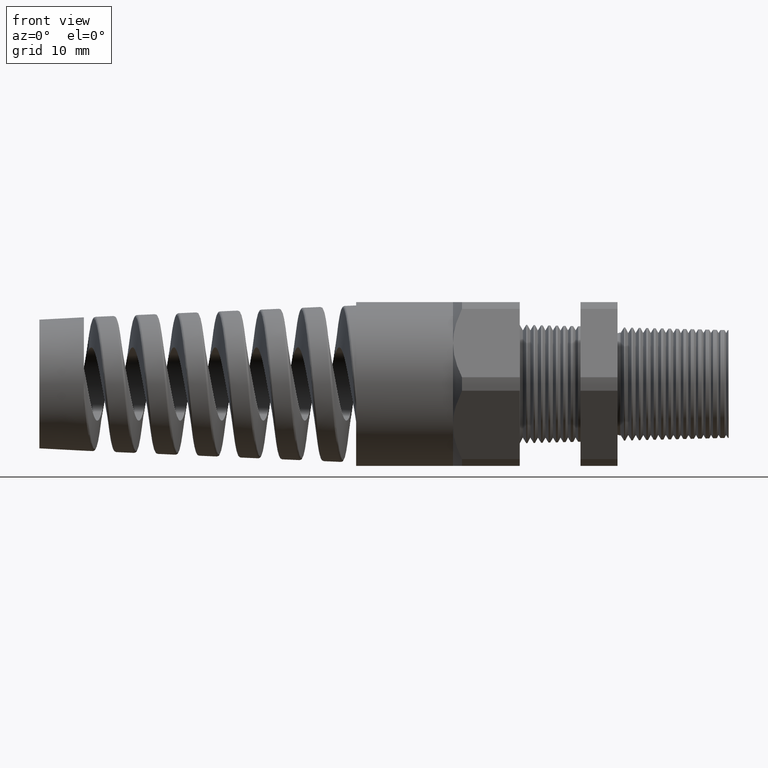
[diagram: clean part render]
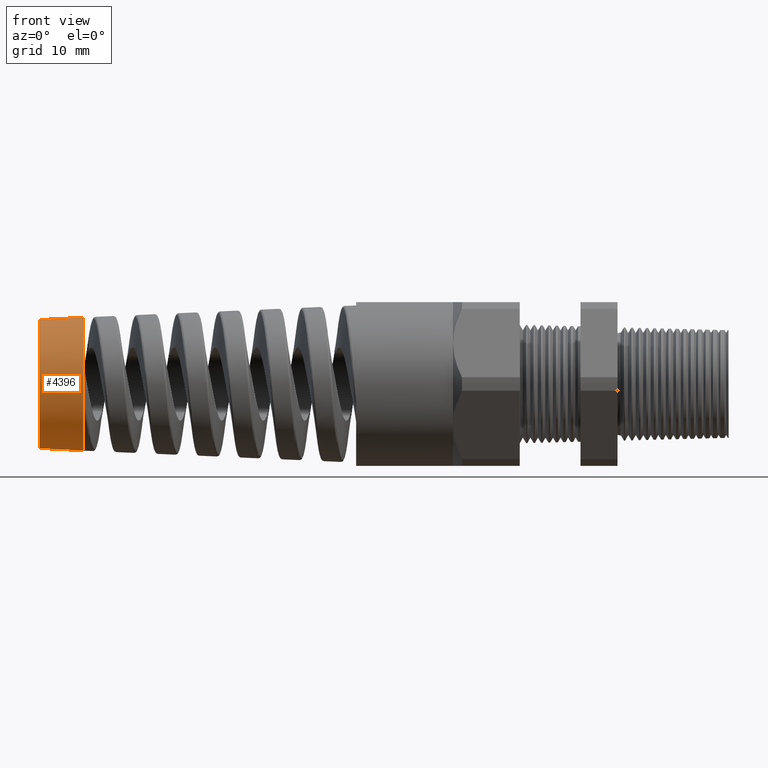
[diagram: same view with one face highlighted and labeled with its STEP entity id]
A machine part, front view. The second image highlights one B-rep face of the part: STEP entity #4396.
In plain terms, the highlighted conical surface has half-angle 3 deg.
Its self-contained STEP definition (entity closure, byte-faithful):
#87 = EDGE_CURVE ( 'NONE', #88, #870, #1836, .T. ) ;
#88 = VERTEX_POINT ( 'NONE', #1832 ) ;
#870 = VERTEX_POINT ( 'NONE', #12626 ) ;
#1832 = CARTESIAN_POINT ( 'NONE',  ( -3.143780000000000000, -0.3460956572398868900, -0.07468500336250298600 ) ) ;
#1833 = DIRECTION ( 'NONE',  ( 0.0000000000000000000, 0.0000000000000000000, -1.000000000000000000 ) ) ;
#1834 = DIRECTION ( 'NONE',  ( 1.000000000000000000, 0.0000000000000000000, 0.0000000000000000000 ) ) ;
#1835 = AXIS2_PLACEMENT_3D ( 'NONE', #1842, #1834, #1833 ) ;
#1836 = CIRCLE ( 'NONE', #1835, 0.3540622172550578200 ) ;
#1842 = CARTESIAN_POINT ( 'NONE',  ( -3.143780000000000000, 0.0000000000000000000, 0.0000000000000000000 ) ) ;
#4387 = EDGE_LOOP ( 'NONE', ( #4398, #4434, #4419, #4408, #4424 ) ) ;
#4396 = ADVANCED_FACE ( 'NONE', ( #7969 ), #8020, .T. ) ;
#4398 = ORIENTED_EDGE ( 'NONE', *, *, #4429, .F. ) ;
#4407 = VERTEX_POINT ( 'NONE', #8191 ) ;
#4408 = ORIENTED_EDGE ( 'NONE', *, *, #4425, .T. ) ;
#4409 = VERTEX_POINT ( 'NONE', #8189 ) ;
#4419 = ORIENTED_EDGE ( 'NONE', *, *, #87, .F. ) ;
#4424 = ORIENTED_EDGE ( 'NONE', *, *, #4426, .F. ) ;
#4425 = EDGE_CURVE ( 'NONE', #88, #4407, #8260, .T. ) ;
#4426 = EDGE_CURVE ( 'NONE', #4409, #4407, #8245, .T. ) ;
#4427 = VERTEX_POINT ( 'NONE', #8238 ) ;
#4429 = EDGE_CURVE ( 'NONE', #4427, #4409, #8232, .T. ) ;
#4430 = EDGE_CURVE ( 'NONE', #4427, #870, #8384, .T. ) ;
#4434 = ORIENTED_EDGE ( 'NONE', *, *, #4430, .T. ) ;
#7969 = FACE_OUTER_BOUND ( 'NONE', #4387, .T. ) ;
#8017 = DIRECTION ( 'NONE',  ( 1.000000000000000000, 0.0000000000000000000, 0.0000000000000000000 ) ) ;
#8018 = AXIS2_PLACEMENT_3D ( 'NONE', #8026, #8017, #8139 ) ;
#8020 = CONICAL_SURFACE ( 'NONE', #8018, 0.3540622172550558200, 0.05235987755983000100 ) ;
#8026 = CARTESIAN_POINT ( 'NONE',  ( -3.143780000000000000, 0.0000000000000000000, 0.0000000000000000000 ) ) ;
#8139 = DIRECTION ( 'NONE',  ( 0.0000000000000000000, 0.0000000000000000000, 1.000000000000000000 ) ) ;
#8189 = CARTESIAN_POINT ( 'NONE',  ( -3.380000472440945400, 0.0000000000000000000, 0.3416824268732350200 ) ) ;
#8191 = CARTESIAN_POINT ( 'NONE',  ( -3.143780000000000000, 0.0000000000000000000, 0.3540622172550558200 ) ) ;
#8225 = DIRECTION ( 'NONE',  ( 0.0000000000000000000, 0.0000000000000000000, 1.000000000000000000 ) ) ;
#8227 = DIRECTION ( 'NONE',  ( -1.000000000000000000, 0.0000000000000000000, 0.0000000000000000000 ) ) ;
#8228 = CARTESIAN_POINT ( 'NONE',  ( -3.380000472440945400, 0.0000000000000000000, 0.0000000000000000000 ) ) ;
#8230 = AXIS2_PLACEMENT_3D ( 'NONE', #8228, #8227, #8225 ) ;
#8232 = CIRCLE ( 'NONE', #8230, 0.3416824268732350200 ) ;
#8238 = CARTESIAN_POINT ( 'NONE',  ( -3.380000472440945400, -4.260207257278128200E-017, -0.3416824268732350200 ) ) ;
#8241 = DIRECTION ( 'NONE',  ( 0.9986295347545738300, 0.0000000000000000000, 0.05233595624294395300 ) ) ;
#8242 = VECTOR ( 'NONE', #8241, 39.37007874015748900 ) ;
#8244 = CARTESIAN_POINT ( 'NONE',  ( -3.143780000000000000, 0.0000000000000000000, 0.3540622172550558200 ) ) ;
#8245 = LINE ( 'NONE', #8244, #8242 ) ;
#8252 = DIRECTION ( 'NONE',  ( 0.0000000000000000000, 0.0000000000000000000, 1.000000000000000000 ) ) ;
#8254 = DIRECTION ( 'NONE',  ( -1.000000000000000000, 0.0000000000000000000, 0.0000000000000000000 ) ) ;
#8256 = CARTESIAN_POINT ( 'NONE',  ( -3.143780000000000000, 0.0000000000000000000, 0.0000000000000000000 ) ) ;
#8258 = AXIS2_PLACEMENT_3D ( 'NONE', #8256, #8254, #8252 ) ;
#8260 = CIRCLE ( 'NONE', #8258, 0.3540622172550558200 ) ;
#8379 = DIRECTION ( 'NONE',  ( 0.9986295347545738300, -6.409306129323724800E-018, -0.05233595624294395300 ) ) ;
#8380 = VECTOR ( 'NONE', #8379, 39.37007874015748900 ) ;
#8382 = CARTESIAN_POINT ( 'NONE',  ( -3.143780000000000000, -4.336011610604188400E-017, -0.3540622172550558200 ) ) ;
#8384 = LINE ( 'NONE', #8382, #8380 ) ;
#12626 = CARTESIAN_POINT ( 'NONE',  ( -3.143780000000000000, -4.336011610604188400E-017, -0.3540622172550558200 ) ) ;